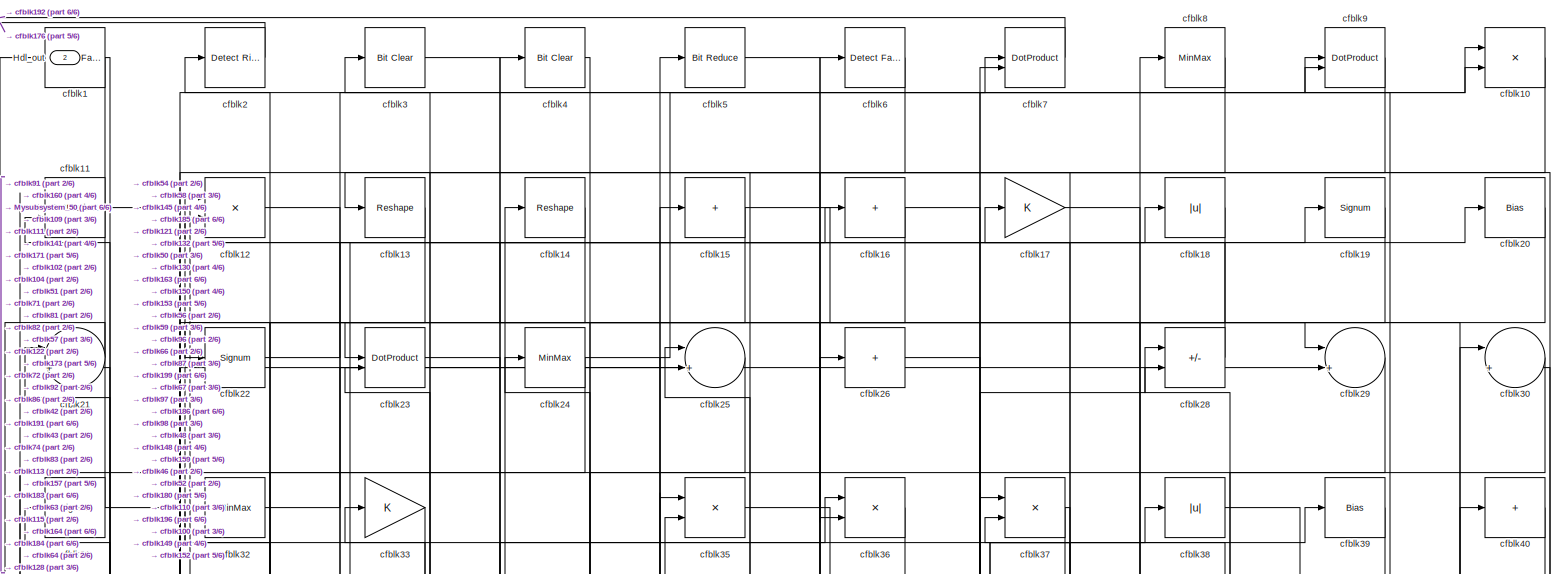
[diagram: root canvas - part 1/6, full width, top band]
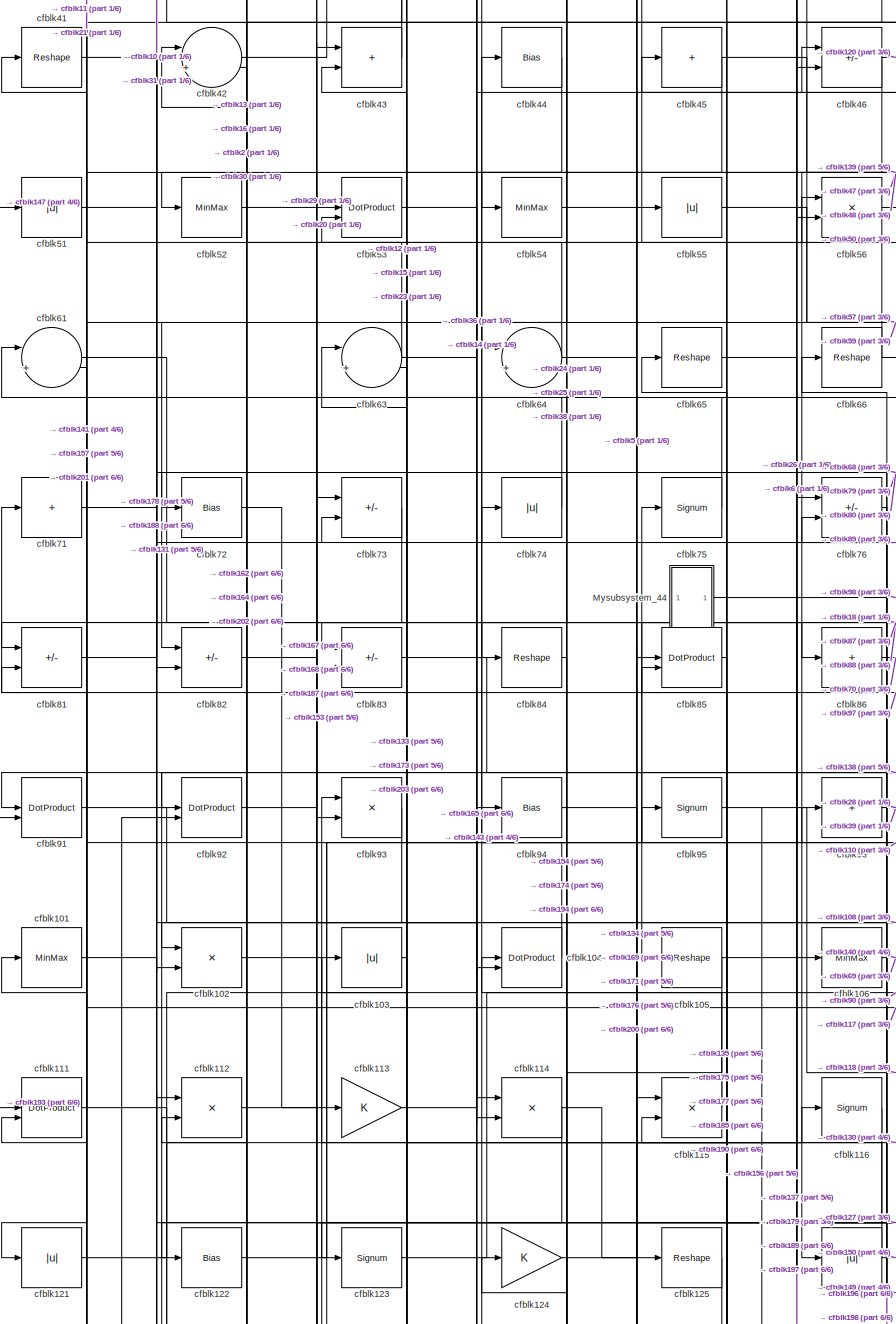
[diagram: root canvas - part 2/6, middle left region]
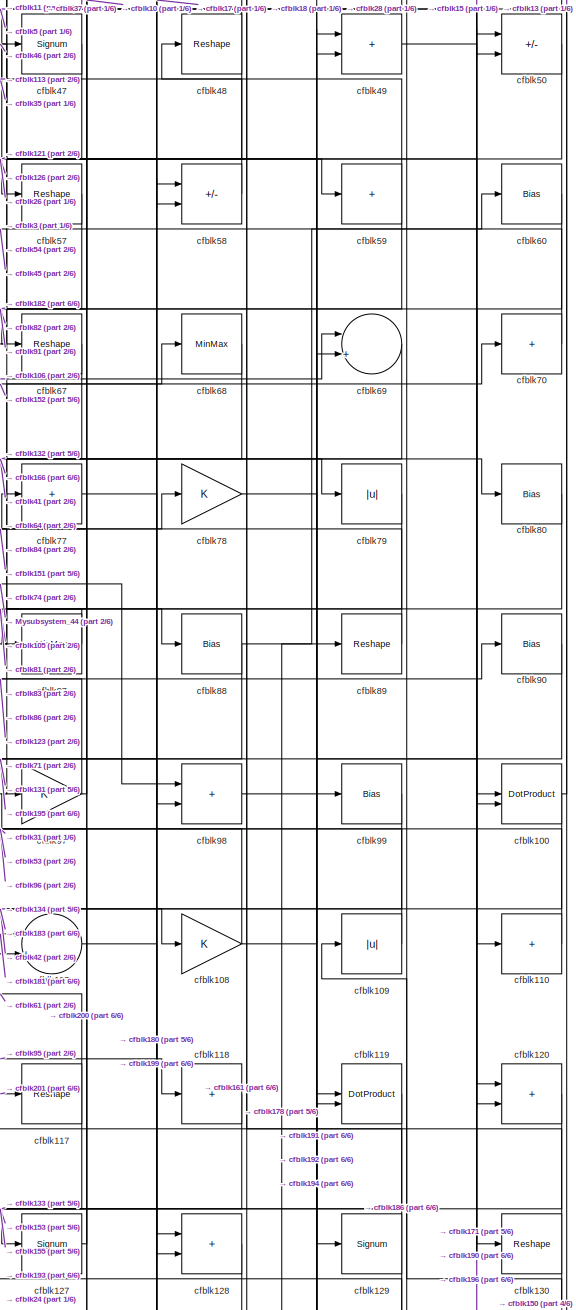
[diagram: root canvas - part 3/6, middle right region]
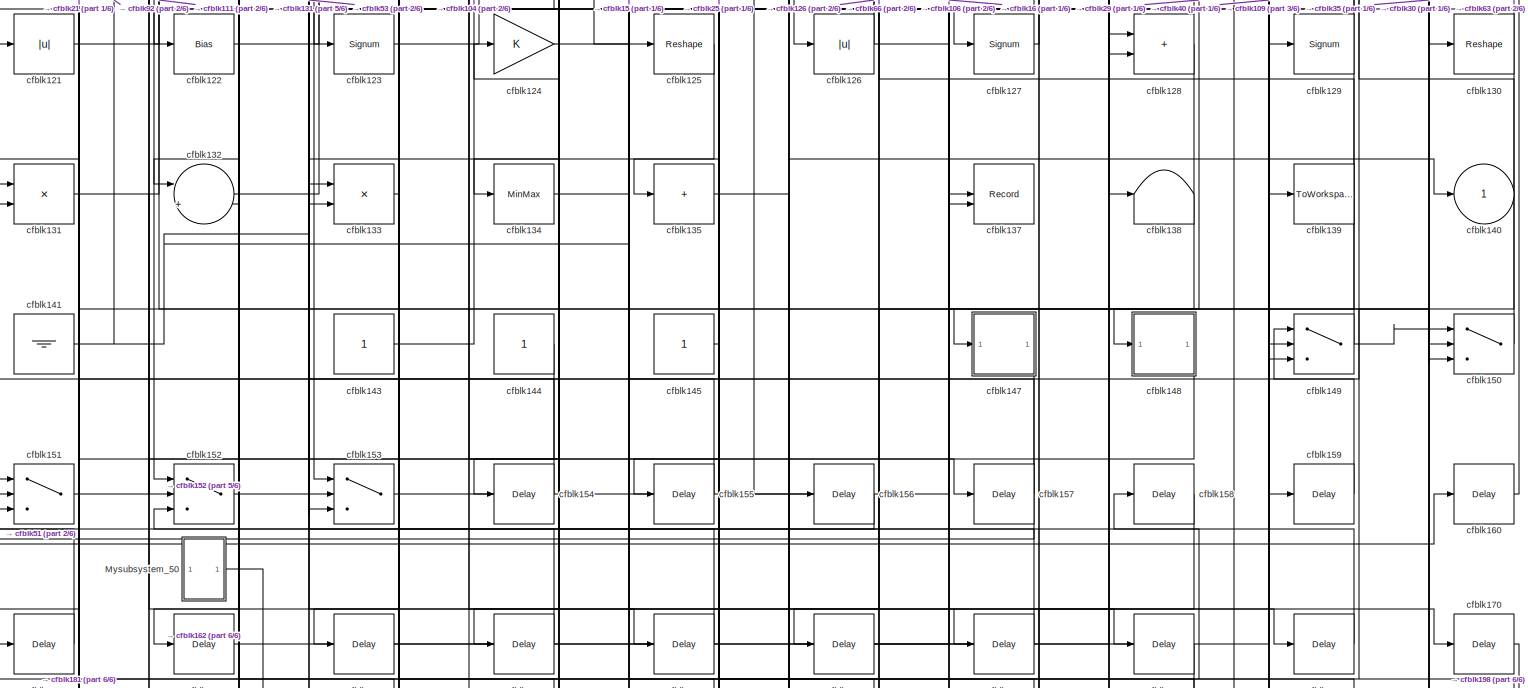
[diagram: root canvas - part 4/6, full width, bottom band]
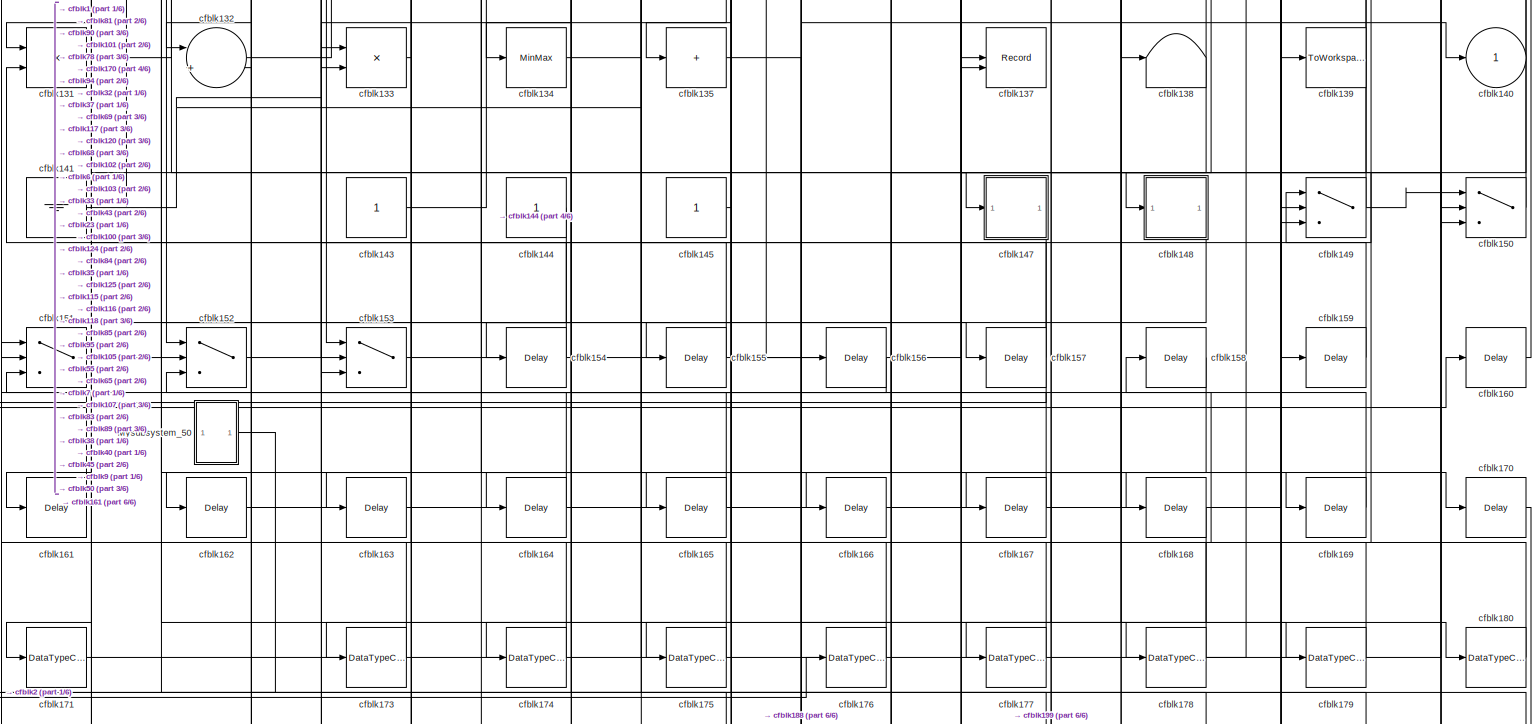
[diagram: root canvas - part 5/6, full width, bottom band]
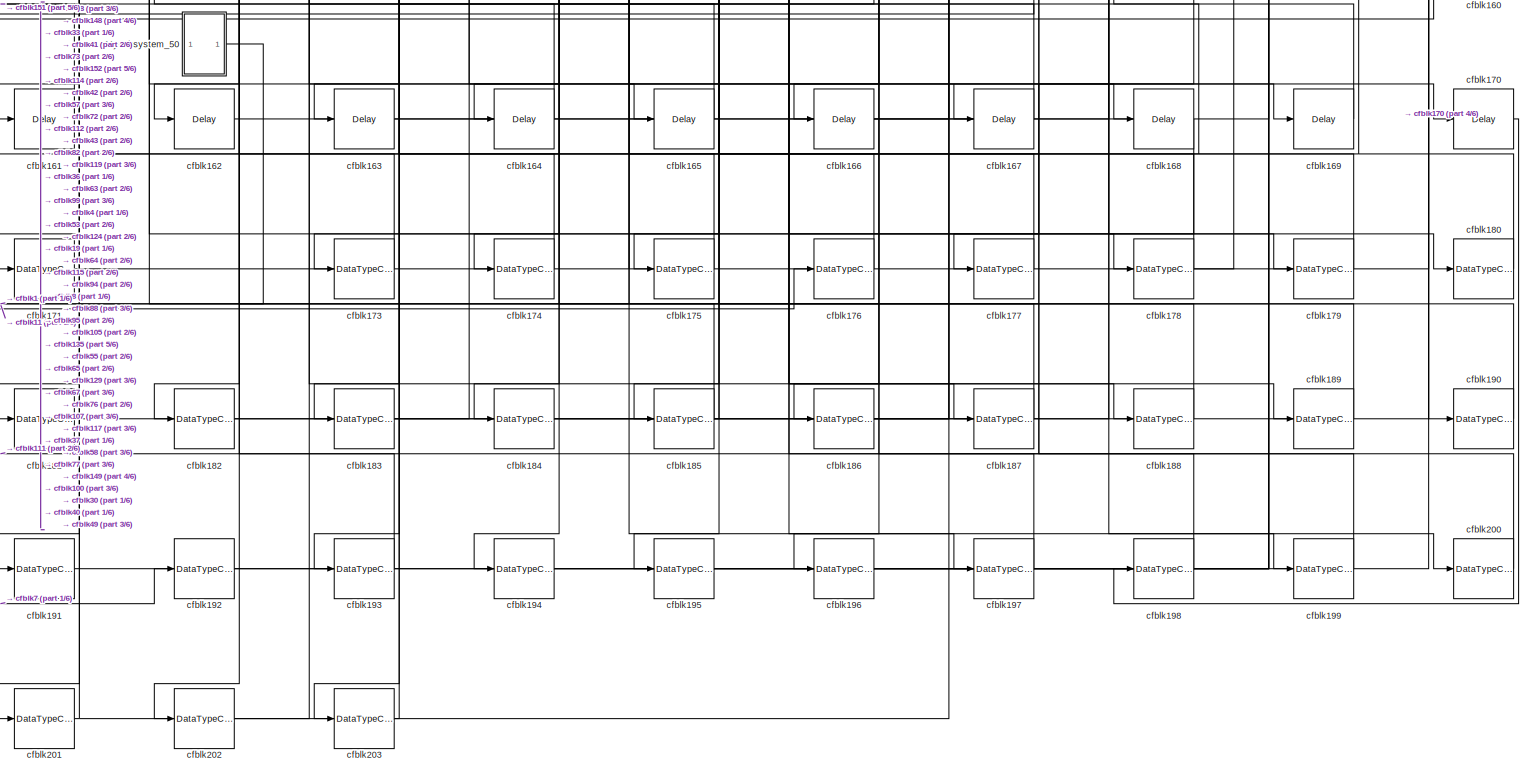
[diagram: root canvas - part 6/6, full width, bottom band]
MODEL slx_8bbd5f42f8d1
KIND model
CONFIG AbsTol = auto
CONFIG EnableMultiTasking = off
CONFIG FixedStep = auto
CONFIG MaxStep = auto
CONFIG MinStep = auto
CONFIG RelTol = 1e-3
CONFIG SampleTimeConstraint = Unconstrained
CONFIG SolverName = VariableStepAuto
CONFIG StartTime = 0.0
CONFIG StopTime = 10.0
BLOCK [Outport] Hdl_out
  OutDataTypeStr = uint8
  Port = 2
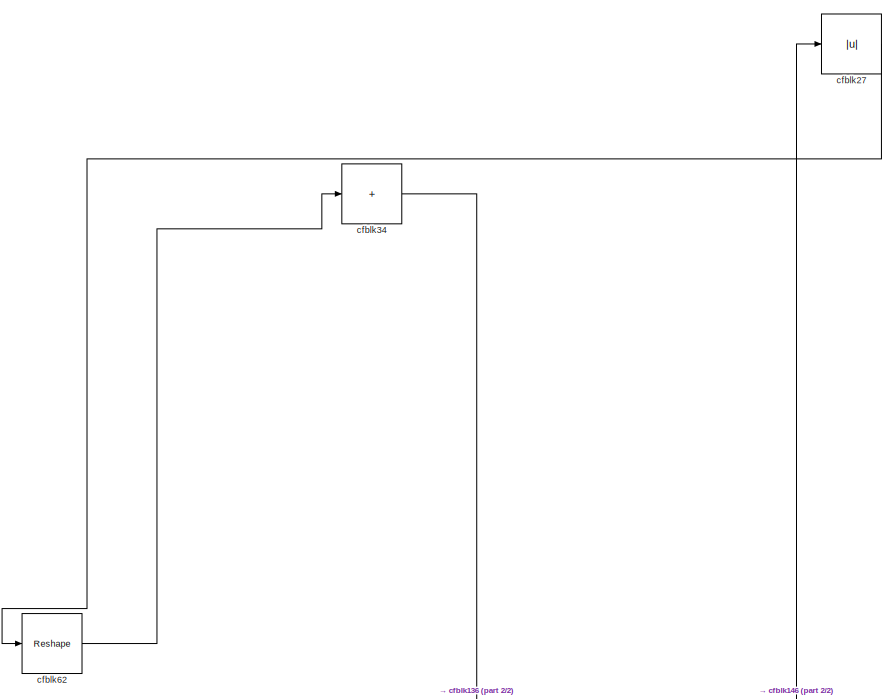
[diagram: Mysubsystem_44 - part 1/2, full width, top band]
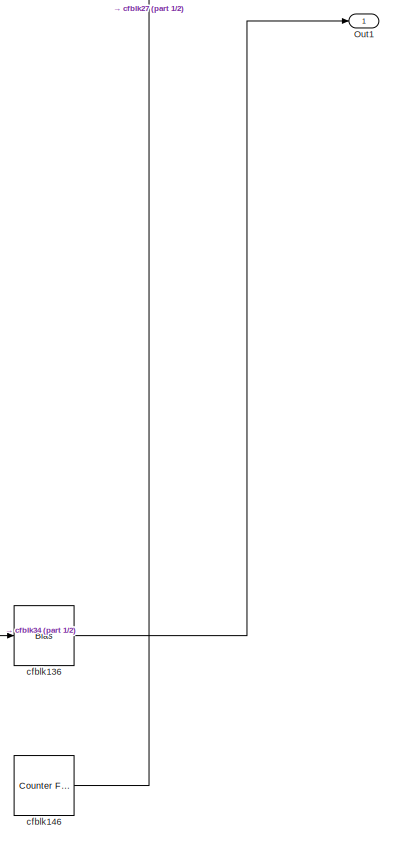
[diagram: Mysubsystem_44 - part 2/2, bottom right region]
BLOCK [SubSystem] Mysubsystem_44
  RTWFcnName = Mysubsystem_44
  RTWFcnNameOpts = User specified
  RTWFileNameOpts = Use function name
  RTWSystemCode = Reusable function
  TreatAsAtomicUnit = on
BLOCK [Outport] Mysubsystem_44/Out1
BLOCK [Bias] Mysubsystem_44/cfblk136
  Bias = 0.0
  SaturateOnIntegerOverflow = off
BLOCK [Reference] Mysubsystem_44/cfblk146  REF=hdlsllib/Sources/Counter
Free-Running
  SourceBlock = hdlsllib/Sources/Counter\nFree-Running
  SourceType = Counter Free-Running
BLOCK [Abs] Mysubsystem_44/cfblk27
  SaturateOnIntegerOverflow = off
BLOCK [Sum] Mysubsystem_44/cfblk34
  IconShape = rectangular
  Inputs = +
BLOCK [Reshape] Mysubsystem_44/cfblk62
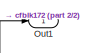
[diagram: Mysubsystem_50 - part 1/2, top left region]
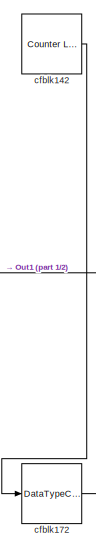
[diagram: Mysubsystem_50 - part 2/2, bottom right region]
BLOCK [SubSystem] Mysubsystem_50
  RTWFcnName = Mysubsystem_50
  RTWFcnNameOpts = User specified
  RTWFileNameOpts = Use function name
  RTWSystemCode = Reusable function
  TreatAsAtomicUnit = on
BLOCK [Outport] Mysubsystem_50/Out1
BLOCK [Reference] Mysubsystem_50/cfblk142  REF=hdlsllib/Sources/Counter
Limited
  SourceBlock = hdlsllib/Sources/Counter\nLimited
  SourceType = Counter Limited
BLOCK [DataTypeConversion] Mysubsystem_50/cfblk172
  OutDataTypeStr = uint8
  RndMeth = Floor
  SaturateOnIntegerOverflow = off
BLOCK [Reference] cfblk1  REF=hdlsllib/Logic and Bit
Operations/Detect Fall
Negative
  SourceBlock = hdlsllib/Logic and Bit\nOperations/Detect Fall\nNegative
  SourceType = Detect Fall Negative
BLOCK [Product] cfblk10
  Inputs = */
  OutDataTypeStr = uint8
  RndMeth = Zero
  SaturateOnIntegerOverflow = on
BLOCK [DotProduct] cfblk100
  OutDataTypeStr = uint8
BLOCK [MinMax] cfblk101
  OutDataTypeStr = uint8
BLOCK [Product] cfblk102
  Inputs = */
  OutDataTypeStr = uint8
  RndMeth = Zero
  SaturateOnIntegerOverflow = on
BLOCK [Abs] cfblk103
  OutDataTypeStr = uint8
  SaturateOnIntegerOverflow = off
BLOCK [DotProduct] cfblk104
  OutDataTypeStr = uint8
BLOCK [Reshape] cfblk105
BLOCK [MinMax] cfblk106
  OutDataTypeStr = uint8
BLOCK [Sum] cfblk107
  Inputs = |++
  OutDataTypeStr = uint8
BLOCK [Gain] cfblk108
  OutDataTypeStr = uint8
BLOCK [Abs] cfblk109
  OutDataTypeStr = uint8
  SaturateOnIntegerOverflow = off
BLOCK [DotProduct] cfblk11
  OutDataTypeStr = uint8
BLOCK [Sum] cfblk110
  IconShape = rectangular
  Inputs = +
  OutDataTypeStr = uint8
BLOCK [DotProduct] cfblk111
  OutDataTypeStr = uint8
BLOCK [Product] cfblk112
  Inputs = */
  OutDataTypeStr = uint8
  RndMeth = Zero
  SaturateOnIntegerOverflow = on
BLOCK [Gain] cfblk113
  OutDataTypeStr = uint8
BLOCK [Product] cfblk114
  Inputs = */
  OutDataTypeStr = uint8
  RndMeth = Zero
  SaturateOnIntegerOverflow = on
BLOCK [Product] cfblk115
  Inputs = */
  OutDataTypeStr = uint8
  RndMeth = Zero
  SaturateOnIntegerOverflow = on
BLOCK [Signum] cfblk116
BLOCK [Reshape] cfblk117
BLOCK [Sum] cfblk118
  IconShape = rectangular
  Inputs = +
  OutDataTypeStr = uint8
BLOCK [DotProduct] cfblk119
  OutDataTypeStr = uint8
BLOCK [Product] cfblk12
  Inputs = */
  OutDataTypeStr = uint8
  RndMeth = Zero
  SaturateOnIntegerOverflow = on
BLOCK [Sum] cfblk120
  IconShape = rectangular
  OutDataTypeStr = uint8
BLOCK [Abs] cfblk121
  OutDataTypeStr = uint8
  SaturateOnIntegerOverflow = off
BLOCK [Bias] cfblk122
  Bias = 0.0
  SaturateOnIntegerOverflow = off
BLOCK [Signum] cfblk123
BLOCK [Gain] cfblk124
  OutDataTypeStr = uint8
BLOCK [Reshape] cfblk125
BLOCK [Abs] cfblk126
  OutDataTypeStr = uint8
  SaturateOnIntegerOverflow = off
BLOCK [Signum] cfblk127
BLOCK [Sum] cfblk128
  IconShape = rectangular
  OutDataTypeStr = uint8
BLOCK [Signum] cfblk129
BLOCK [Reshape] cfblk13
BLOCK [Reshape] cfblk130
BLOCK [Product] cfblk131
  Inputs = */
  OutDataTypeStr = uint8
  RndMeth = Zero
  SaturateOnIntegerOverflow = on
BLOCK [Sum] cfblk132
  Inputs = |++
  OutDataTypeStr = uint8
BLOCK [Product] cfblk133
  Inputs = */
  OutDataTypeStr = uint8
  RndMeth = Zero
  SaturateOnIntegerOverflow = on
BLOCK [MinMax] cfblk134
  OutDataTypeStr = uint8
BLOCK [Sum] cfblk135
  IconShape = rectangular
  Inputs = +
  OutDataTypeStr = uint8
BLOCK [Record] cfblk137
  CompatibilityTag = XY
  FileSettingsInternal = {"entries":[{"content":{"excelSettings":{"content":{},"type":"Streamout.ExcelSettings"}},"type":"Streamout.FileSettingStorage","uuid":""}],"packageUris":["http:\/\/schema.mathworks.com\/mf0\/streamout_blocks\/R2020a"],"version":"1.0"}
  Layout = [1 1]
  SignalsInternal = {"entries":[{"content":{"signals":[{"content":{"blockPath":[],"dimensions":[1],"domain":"","lineColor":"#a2142f","plots":[1],"port":1,"signalID":59019,"signalName":"cfblk55"},"type":"RecordBlkView.Signal","uuid":""},{"content":{"blockPath":[],"dimensions":[1],"domain":"","lineColor":"#139fff","plots":[1],"port":2,"signalID":59022,"signalName":"cfblk65"},"type":"RecordBlkView.Signal","uuid":""}]},"...<+142ch>
  VisualizationBindings = {"xyplotplugin":{"info":[{"series":[{"bindingParametersList":[{"parameter":"X-Axis","signalID":59019,"signalName":"cfblk55"},{"parameter":"Y-Axis","signalID":59022,"signalName":"cfblk65"}],"seriesID":23205}],"subplotID":1}]}}
  st = -1
BLOCK [Terminator] cfblk138
BLOCK [ToWorkspace] cfblk139
  MaxDataPoints = inf
  SampleTime = -1
  SaveFormat = Timeseries
  VariableName = simout
BLOCK [Reshape] cfblk14
BLOCK [Outport] cfblk140
  OutDataTypeStr = uint8
  VectorParamsAs1DForOutWhenUnconnected = off
BLOCK [Ground] cfblk141
BLOCK [Constant] cfblk143
  OutDataTypeStr = uint8
  SampleTime = -1
BLOCK [Constant] cfblk144
  OutDataTypeStr = uint8
  SampleTime = -1
BLOCK [Constant] cfblk145
  OutDataTypeStr = uint8
  SampleTime = -1
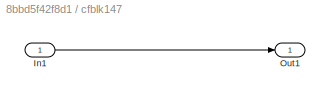
BLOCK [SubSystem] cfblk147
  LibrarySourceBlock = hdlsllib/Ports &\nSubsystems/Subsystem
BLOCK [Inport] cfblk147/In1
BLOCK [Outport] cfblk147/Out1
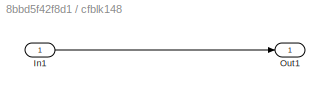
BLOCK [SubSystem] cfblk148
  LibrarySourceBlock = hdlsllib/Ports &\nSubsystems/Subsystem
BLOCK [Inport] cfblk148/In1
BLOCK [Outport] cfblk148/Out1
BLOCK [Switch] cfblk149
  InputSameDT = off
  OutDataTypeStr = uint8
  SaturateOnIntegerOverflow = off
BLOCK [Sum] cfblk15
  IconShape = rectangular
  Inputs = +
  OutDataTypeStr = uint8
BLOCK [Switch] cfblk150
  InputSameDT = off
  OutDataTypeStr = uint8
  SaturateOnIntegerOverflow = off
BLOCK [Switch] cfblk151
  InputSameDT = off
  OutDataTypeStr = uint8
  SaturateOnIntegerOverflow = off
BLOCK [Switch] cfblk152
  InputSameDT = off
  OutDataTypeStr = uint8
  SaturateOnIntegerOverflow = off
BLOCK [Switch] cfblk153
  InputSameDT = off
  OutDataTypeStr = uint8
  SaturateOnIntegerOverflow = off
BLOCK [Delay] cfblk154
  InputPortMap = u0
  SampleTime = 1
BLOCK [Delay] cfblk155
  InputPortMap = u0
  SampleTime = 1
BLOCK [Delay] cfblk156
  InputPortMap = u0
  SampleTime = 1
BLOCK [Delay] cfblk157
  InputPortMap = u0
  SampleTime = 1
BLOCK [Delay] cfblk158
  InputPortMap = u0
  SampleTime = 1
BLOCK [Delay] cfblk159
  InputPortMap = u0
  SampleTime = 1
BLOCK [Sum] cfblk16
  IconShape = rectangular
  Inputs = +
  OutDataTypeStr = uint8
BLOCK [Delay] cfblk160
  InputPortMap = u0
  SampleTime = 1
BLOCK [Delay] cfblk161
  InputPortMap = u0
  SampleTime = 1
BLOCK [Delay] cfblk162
  InputPortMap = u0
  SampleTime = 1
BLOCK [Delay] cfblk163
  InputPortMap = u0
  SampleTime = 1
BLOCK [Delay] cfblk164
  InputPortMap = u0
  SampleTime = 1
BLOCK [Delay] cfblk165
  InputPortMap = u0
  SampleTime = 1
BLOCK [Delay] cfblk166
  InputPortMap = u0
  SampleTime = 1
BLOCK [Delay] cfblk167
  InputPortMap = u0
  SampleTime = 1
BLOCK [Delay] cfblk168
  InputPortMap = u0
  SampleTime = 1
BLOCK [Delay] cfblk169
  InputPortMap = u0
  SampleTime = 1
BLOCK [Gain] cfblk17
  OutDataTypeStr = uint8
BLOCK [Delay] cfblk170
  InputPortMap = u0
  SampleTime = 1
BLOCK [DataTypeConversion] cfblk171
  OutDataTypeStr = uint8
  RndMeth = Floor
  SaturateOnIntegerOverflow = off
BLOCK [DataTypeConversion] cfblk173
  OutDataTypeStr = uint8
  RndMeth = Floor
  SaturateOnIntegerOverflow = off
BLOCK [DataTypeConversion] cfblk174
  OutDataTypeStr = uint8
  RndMeth = Floor
  SaturateOnIntegerOverflow = off
BLOCK [DataTypeConversion] cfblk175
  OutDataTypeStr = uint8
  RndMeth = Floor
  SaturateOnIntegerOverflow = off
BLOCK [DataTypeConversion] cfblk176
  OutDataTypeStr = uint8
  RndMeth = Floor
  SaturateOnIntegerOverflow = off
BLOCK [DataTypeConversion] cfblk177
  OutDataTypeStr = uint8
  RndMeth = Floor
  SaturateOnIntegerOverflow = off
BLOCK [DataTypeConversion] cfblk178
  OutDataTypeStr = uint8
  RndMeth = Floor
  SaturateOnIntegerOverflow = off
BLOCK [DataTypeConversion] cfblk179
  OutDataTypeStr = uint8
  RndMeth = Floor
  SaturateOnIntegerOverflow = off
BLOCK [Abs] cfblk18
  OutDataTypeStr = uint8
  SaturateOnIntegerOverflow = off
BLOCK [DataTypeConversion] cfblk180
  OutDataTypeStr = uint8
  RndMeth = Floor
  SaturateOnIntegerOverflow = off
BLOCK [DataTypeConversion] cfblk181
  OutDataTypeStr = uint8
  RndMeth = Floor
  SaturateOnIntegerOverflow = off
BLOCK [DataTypeConversion] cfblk182
  OutDataTypeStr = uint8
  RndMeth = Floor
  SaturateOnIntegerOverflow = off
BLOCK [DataTypeConversion] cfblk183
  OutDataTypeStr = uint8
  RndMeth = Floor
  SaturateOnIntegerOverflow = off
BLOCK [DataTypeConversion] cfblk184
  OutDataTypeStr = uint8
  RndMeth = Floor
  SaturateOnIntegerOverflow = off
BLOCK [DataTypeConversion] cfblk185
  OutDataTypeStr = uint8
  RndMeth = Floor
  SaturateOnIntegerOverflow = off
BLOCK [DataTypeConversion] cfblk186
  OutDataTypeStr = uint8
  RndMeth = Floor
  SaturateOnIntegerOverflow = off
BLOCK [DataTypeConversion] cfblk187
  OutDataTypeStr = uint8
  RndMeth = Floor
  SaturateOnIntegerOverflow = off
BLOCK [DataTypeConversion] cfblk188
  OutDataTypeStr = uint8
  RndMeth = Floor
  SaturateOnIntegerOverflow = off
BLOCK [DataTypeConversion] cfblk189
  OutDataTypeStr = uint8
  RndMeth = Floor
  SaturateOnIntegerOverflow = off
BLOCK [Signum] cfblk19
BLOCK [DataTypeConversion] cfblk190
  OutDataTypeStr = uint8
  RndMeth = Floor
  SaturateOnIntegerOverflow = off
BLOCK [DataTypeConversion] cfblk191
  OutDataTypeStr = uint8
  RndMeth = Floor
  SaturateOnIntegerOverflow = off
BLOCK [DataTypeConversion] cfblk192
  OutDataTypeStr = uint8
  RndMeth = Floor
  SaturateOnIntegerOverflow = off
BLOCK [DataTypeConversion] cfblk193
  OutDataTypeStr = uint8
  RndMeth = Floor
  SaturateOnIntegerOverflow = off
BLOCK [DataTypeConversion] cfblk194
  OutDataTypeStr = uint8
  RndMeth = Floor
  SaturateOnIntegerOverflow = off
BLOCK [DataTypeConversion] cfblk195
  OutDataTypeStr = uint8
  RndMeth = Floor
  SaturateOnIntegerOverflow = off
BLOCK [DataTypeConversion] cfblk196
  OutDataTypeStr = uint8
  RndMeth = Floor
  SaturateOnIntegerOverflow = off
BLOCK [DataTypeConversion] cfblk197
  OutDataTypeStr = uint8
  RndMeth = Floor
  SaturateOnIntegerOverflow = off
BLOCK [DataTypeConversion] cfblk198
  OutDataTypeStr = uint8
  RndMeth = Floor
  SaturateOnIntegerOverflow = off
BLOCK [DataTypeConversion] cfblk199
  OutDataTypeStr = uint8
  RndMeth = Floor
  SaturateOnIntegerOverflow = off
BLOCK [Reference] cfblk2  REF=hdlsllib/Logic and Bit
Operations/Detect Rise
Positive
  SourceBlock = hdlsllib/Logic and Bit\nOperations/Detect Rise\nPositive
  SourceType = Detect Rise Positive
BLOCK [Bias] cfblk20
  Bias = 0.0
  SaturateOnIntegerOverflow = off
BLOCK [DataTypeConversion] cfblk200
  OutDataTypeStr = uint8
  RndMeth = Floor
  SaturateOnIntegerOverflow = off
BLOCK [DataTypeConversion] cfblk201
  OutDataTypeStr = uint8
  RndMeth = Floor
  SaturateOnIntegerOverflow = off
BLOCK [DataTypeConversion] cfblk202
  OutDataTypeStr = uint8
  RndMeth = Floor
  SaturateOnIntegerOverflow = off
BLOCK [DataTypeConversion] cfblk203
  OutDataTypeStr = uint8
  RndMeth = Floor
  SaturateOnIntegerOverflow = off
BLOCK [Sum] cfblk21
  Inputs = |++
  OutDataTypeStr = uint8
BLOCK [Signum] cfblk22
BLOCK [DotProduct] cfblk23
  OutDataTypeStr = uint8
BLOCK [MinMax] cfblk24
  OutDataTypeStr = uint8
BLOCK [Sum] cfblk25
  Inputs = |++
  OutDataTypeStr = uint8
BLOCK [Sum] cfblk26
  IconShape = rectangular
  Inputs = +
  OutDataTypeStr = uint8
BLOCK [Sum] cfblk28
  IconShape = rectangular
  Inputs = +-
  OutDataTypeStr = uint8
BLOCK [Sum] cfblk29
  Inputs = |++
  OutDataTypeStr = uint8
BLOCK [Reference] cfblk3  REF=simulink/Logic and Bit
Operations/Bit Clear
  LibrarySourceBlock = hdlsllib/Logic and Bit\nOperations/Bit Clear
  SourceBlock = simulink/Logic and Bit\nOperations/Bit Clear
  SourceType = Bit Clear
BLOCK [Sum] cfblk30
  Inputs = |++
  OutDataTypeStr = uint8
BLOCK [Signum] cfblk31
BLOCK [MinMax] cfblk32
  OutDataTypeStr = uint8
BLOCK [Gain] cfblk33
  OutDataTypeStr = uint8
BLOCK [Product] cfblk35
  Inputs = */
  OutDataTypeStr = uint8
  RndMeth = Zero
  SaturateOnIntegerOverflow = on
BLOCK [Product] cfblk36
  Inputs = */
  OutDataTypeStr = uint8
  RndMeth = Zero
  SaturateOnIntegerOverflow = on
BLOCK [Product] cfblk37
  Inputs = */
  OutDataTypeStr = uint8
  RndMeth = Zero
  SaturateOnIntegerOverflow = on
BLOCK [Abs] cfblk38
  OutDataTypeStr = uint8
  SaturateOnIntegerOverflow = off
BLOCK [Bias] cfblk39
  Bias = 0.0
  SaturateOnIntegerOverflow = off
BLOCK [Reference] cfblk4  REF=simulink/Logic and Bit
Operations/Bit Clear
  LibrarySourceBlock = hdlsllib/Logic and Bit\nOperations/Bit Clear
  SourceBlock = simulink/Logic and Bit\nOperations/Bit Clear
  SourceType = Bit Clear
BLOCK [Sum] cfblk40
  IconShape = rectangular
  Inputs = +
  OutDataTypeStr = uint8
BLOCK [Reshape] cfblk41
BLOCK [Sum] cfblk42
  Inputs = |++
  OutDataTypeStr = uint8
BLOCK [Sum] cfblk43
  IconShape = rectangular
  OutDataTypeStr = uint8
BLOCK [Bias] cfblk44
  Bias = 0.0
  SaturateOnIntegerOverflow = off
BLOCK [Sum] cfblk45
  IconShape = rectangular
  Inputs = +
  OutDataTypeStr = uint8
BLOCK [Sum] cfblk46
  IconShape = rectangular
  Inputs = +-
  OutDataTypeStr = uint8
BLOCK [Signum] cfblk47
BLOCK [Reshape] cfblk48
BLOCK [Sum] cfblk49
  IconShape = rectangular
  OutDataTypeStr = uint8
BLOCK [Reference] cfblk5  REF=hdlsllib/Logic and Bit
Operations/Bit Reduce
  SourceBlock = hdlsllib/Logic and Bit\nOperations/Bit Reduce
  SourceType = Bit Reduce
BLOCK [Sum] cfblk50
  IconShape = rectangular
  Inputs = +-
  OutDataTypeStr = uint8
BLOCK [Abs] cfblk51
  OutDataTypeStr = uint8
  SaturateOnIntegerOverflow = off
BLOCK [MinMax] cfblk52
  OutDataTypeStr = uint8
BLOCK [DotProduct] cfblk53
  OutDataTypeStr = uint8
BLOCK [MinMax] cfblk54
  OutDataTypeStr = uint8
BLOCK [Abs] cfblk55
  OutDataTypeStr = uint8
  SaturateOnIntegerOverflow = off
BLOCK [Product] cfblk56
  Inputs = */
  OutDataTypeStr = uint8
  RndMeth = Zero
  SaturateOnIntegerOverflow = on
BLOCK [Reshape] cfblk57
BLOCK [Sum] cfblk58
  IconShape = rectangular
  Inputs = +-
  OutDataTypeStr = uint8
BLOCK [Sum] cfblk59
  IconShape = rectangular
  Inputs = +
  OutDataTypeStr = uint8
BLOCK [Reference] cfblk6  REF=hdlsllib/Logic and Bit
Operations/Detect Fall
Negative
  SourceBlock = hdlsllib/Logic and Bit\nOperations/Detect Fall\nNegative
  SourceType = Detect Fall Negative
BLOCK [Bias] cfblk60
  Bias = 0.0
  SaturateOnIntegerOverflow = off
BLOCK [Sum] cfblk61
  Inputs = |++
  OutDataTypeStr = uint8
BLOCK [Sum] cfblk63
  Inputs = |++
  OutDataTypeStr = uint8
BLOCK [Sum] cfblk64
  Inputs = |++
  OutDataTypeStr = uint8
BLOCK [Reshape] cfblk65
BLOCK [Reshape] cfblk66
BLOCK [Reshape] cfblk67
BLOCK [MinMax] cfblk68
  OutDataTypeStr = uint8
BLOCK [Sum] cfblk69
  Inputs = |++
  OutDataTypeStr = uint8
BLOCK [DotProduct] cfblk7
  OutDataTypeStr = uint8
BLOCK [Sum] cfblk70
  IconShape = rectangular
  Inputs = +
  OutDataTypeStr = uint8
BLOCK [Sum] cfblk71
  IconShape = rectangular
  Inputs = +
  OutDataTypeStr = uint8
BLOCK [Bias] cfblk72
  Bias = 0.0
  SaturateOnIntegerOverflow = off
BLOCK [Sum] cfblk73
  IconShape = rectangular
  Inputs = +-
  OutDataTypeStr = uint8
BLOCK [Abs] cfblk74
  OutDataTypeStr = uint8
  SaturateOnIntegerOverflow = off
BLOCK [Signum] cfblk75
BLOCK [Sum] cfblk76
  IconShape = rectangular
  Inputs = +-
  OutDataTypeStr = uint8
BLOCK [Sum] cfblk77
  IconShape = rectangular
  Inputs = +
  OutDataTypeStr = uint8
BLOCK [Gain] cfblk78
  OutDataTypeStr = uint8
BLOCK [Abs] cfblk79
  OutDataTypeStr = uint8
  SaturateOnIntegerOverflow = off
BLOCK [MinMax] cfblk8
  OutDataTypeStr = uint8
BLOCK [Bias] cfblk80
  Bias = 0.0
  SaturateOnIntegerOverflow = off
BLOCK [Sum] cfblk81
  IconShape = rectangular
  Inputs = +-
  OutDataTypeStr = uint8
BLOCK [Sum] cfblk82
  IconShape = rectangular
  Inputs = +-
  OutDataTypeStr = uint8
BLOCK [Sum] cfblk83
  IconShape = rectangular
  Inputs = +-
  OutDataTypeStr = uint8
BLOCK [Reshape] cfblk84
BLOCK [DotProduct] cfblk85
  OutDataTypeStr = uint8
BLOCK [Sum] cfblk86
  IconShape = rectangular
  Inputs = +
  OutDataTypeStr = uint8
BLOCK [MinMax] cfblk87
  OutDataTypeStr = uint8
BLOCK [Bias] cfblk88
  Bias = 0.0
  SaturateOnIntegerOverflow = off
BLOCK [Reshape] cfblk89
BLOCK [DotProduct] cfblk9
  OutDataTypeStr = uint8
BLOCK [Bias] cfblk90
  Bias = 0.0
  SaturateOnIntegerOverflow = off
BLOCK [DotProduct] cfblk91
  OutDataTypeStr = uint8
BLOCK [DotProduct] cfblk92
  OutDataTypeStr = uint8
BLOCK [Product] cfblk93
  Inputs = */
  OutDataTypeStr = uint8
  RndMeth = Zero
  SaturateOnIntegerOverflow = on
BLOCK [Bias] cfblk94
  Bias = 0.0
  SaturateOnIntegerOverflow = off
BLOCK [Signum] cfblk95
BLOCK [Sum] cfblk96
  IconShape = rectangular
  Inputs = +
  OutDataTypeStr = uint8
BLOCK [Gain] cfblk97
  OutDataTypeStr = uint8
BLOCK [Sum] cfblk98
  IconShape = rectangular
  OutDataTypeStr = uint8
BLOCK [Bias] cfblk99
  Bias = 0.0
  SaturateOnIntegerOverflow = off
LINE Mysubsystem_44/cfblk136:1 -> Mysubsystem_44/Out1:1
LINE Mysubsystem_44/cfblk146:1 -> Mysubsystem_44/cfblk27:1
LINE Mysubsystem_44/cfblk27:1 -> Mysubsystem_44/cfblk62:1
LINE Mysubsystem_44/cfblk34:1 -> Mysubsystem_44/cfblk136:1
LINE Mysubsystem_44/cfblk62:1 -> Mysubsystem_44/cfblk34:1
LINE Mysubsystem_44:1 -> cfblk98:1
LINE Mysubsystem_50/cfblk142:1 -> Mysubsystem_50/cfblk172:1
LINE Mysubsystem_50/cfblk172:1 -> Mysubsystem_50/Out1:1
LINE Mysubsystem_50:1 -> cfblk1:1
NET cfblk100:1 -> cfblk134:1, cfblk13:1
LINE cfblk101:1 -> cfblk178:1
LINE cfblk102:1 -> cfblk153:1
LINE cfblk103:1 -> cfblk173:1
LINE cfblk104:1 -> cfblk44:1
NET cfblk105:1 -> cfblk179:1, cfblk194:1
NET cfblk106:1 -> cfblk140:1, cfblk69:1
LINE cfblk107:1 -> cfblk180:1
NET cfblk108:1 -> cfblk53:2, cfblk69:2
LINE cfblk109:1 -> cfblk31:1
NET cfblk10:1 -> cfblk102:2, cfblk67:1
LINE cfblk110:1 -> cfblk96:1
NET cfblk111:1 -> cfblk11:2, cfblk147:1
LINE cfblk112:1 -> cfblk187:1
NET cfblk113:1 -> cfblk16:1, cfblk47:1
NET cfblk114:1 -> cfblk125:1, cfblk162:1
LINE cfblk115:1 -> cfblk14:1
LINE cfblk116:1 -> cfblk135:1
NET cfblk117:1 -> cfblk133:2, cfblk61:2
LINE cfblk118:1 -> cfblk155:1
LINE cfblk119:1 -> cfblk193:1
LINE cfblk11:1 -> cfblk57:1
LINE cfblk120:1 -> cfblk153:2
LINE cfblk121:1 -> cfblk26:1
LINE cfblk122:1 -> cfblk75:1
LINE cfblk123:1 -> cfblk90:1
NET cfblk124:1 -> cfblk169:1, cfblk174:1
LINE cfblk125:1 -> cfblk153:3
NET cfblk126:1 -> cfblk150:2, cfblk93:1
LINE cfblk127:1 -> cfblk97:1
LINE cfblk128:1 -> cfblk161:1
NET cfblk129:1 -> cfblk186:1, cfblk48:1
LINE cfblk12:1 -> cfblk86:1
NET cfblk130:1 -> cfblk149:1, cfblk63:2
NET cfblk131:1 -> cfblk170:1, cfblk94:1
LINE cfblk132:1 -> cfblk6:1
LINE cfblk133:1 -> cfblk43:2
LINE cfblk134:1 -> cfblk116:1
LINE cfblk135:1 -> cfblk188:1
LINE cfblk13:1 -> cfblk122:1
NET cfblk141:1 -> cfblk15:1, cfblk21:2, cfblk53:1, cfblk92:2
LINE cfblk143:1 -> cfblk104:1
LINE cfblk144:1 -> cfblk152:2
LINE cfblk145:1 -> cfblk25:1
LINE cfblk147/In1:1 -> cfblk147/Out1:1
LINE cfblk147:1 -> cfblk51:1
LINE cfblk148/In1:1 -> cfblk148/Out1:1
LINE cfblk148:1 -> cfblk181:1
NET cfblk149:1 -> cfblk150:1, cfblk66:1
LINE cfblk14:1 -> cfblk82:2
LINE cfblk150:1 -> cfblk109:1
LINE cfblk151:1 -> cfblk78:1
LINE cfblk152:1 -> cfblk68:1
LINE cfblk153:1 -> cfblk7:2
LINE cfblk154:1 -> cfblk131:2
LINE cfblk155:1 -> cfblk133:1
LINE cfblk156:1 -> cfblk151:3
LINE cfblk157:1 -> cfblk81:2
LINE cfblk158:1 -> cfblk177:1
LINE cfblk159:1 -> cfblk35:1
NET cfblk15:1 -> cfblk110:1, cfblk83:1
LINE cfblk160:1 -> cfblk30:2
LINE cfblk161:1 -> cfblk151:2
LINE cfblk162:1 -> cfblk149:3
LINE cfblk163:1 -> cfblk37:1
LINE cfblk164:1 -> cfblk42:1
LINE cfblk165:1 -> cfblk63:1
LINE cfblk166:1 -> cfblk58:1
LINE cfblk167:1 -> cfblk43:1
LINE cfblk168:1 -> cfblk203:1
LINE cfblk169:1 -> cfblk64:2
NET cfblk16:1 -> cfblk150:3, cfblk36:2, cfblk92:1
LINE cfblk170:1 -> cfblk198:1
NET cfblk171:1 -> cfblk50:1, cfblk55:1
LINE cfblk173:1 -> cfblk32:1
LINE cfblk174:1 -> cfblk103:1
LINE cfblk175:1 -> cfblk151:1
LINE cfblk176:1 -> cfblk85:1
LINE cfblk177:1 -> cfblk85:2
NET cfblk178:1 -> cfblk115:2, cfblk89:1
LINE cfblk179:1 -> cfblk101:1
LINE cfblk17:1 -> cfblk128:1
NET cfblk180:1 -> cfblk158:1, cfblk33:1, cfblk9:2
LINE cfblk181:1 -> cfblk107:1
LINE cfblk182:1 -> cfblk107:2
LINE cfblk183:1 -> cfblk4:1
LINE cfblk184:1 -> cfblk40:1
NET cfblk185:1 -> cfblk11:1, cfblk65:1
LINE cfblk186:1 -> cfblk8:1
NET cfblk187:1 -> cfblk115:1, cfblk124:1
LINE cfblk188:1 -> cfblk112:1
LINE cfblk189:1 -> cfblk112:2
LINE cfblk18:1 -> cfblk98:2
LINE cfblk190:1 -> cfblk95:1
LINE cfblk191:1 -> cfblk49:1
LINE cfblk192:1 -> cfblk49:2
LINE cfblk193:1 -> cfblk111:1
LINE cfblk194:1 -> cfblk119:1
LINE cfblk195:1 -> cfblk119:2
NET cfblk196:1 -> cfblk100:1, cfblk30:1
LINE cfblk197:1 -> cfblk76:1
LINE cfblk198:1 -> cfblk76:2
NET cfblk199:1 -> cfblk152:3, cfblk37:2
LINE cfblk19:1 -> cfblk164:1
LINE cfblk1:1 -> cfblk171:1
LINE cfblk200:1 -> cfblk77:1
NET cfblk201:1 -> cfblk111:2, cfblk117:1, cfblk41:1
LINE cfblk202:1 -> cfblk73:1
LINE cfblk203:1 -> cfblk73:2
LINE cfblk20:1 -> cfblk22:1
LINE cfblk21:1 -> cfblk160:1
LINE cfblk22:1 -> cfblk19:1
LINE cfblk23:1 -> cfblk157:1
NET cfblk24:1 -> cfblk128:2, cfblk7:1, cfblk91:2
LINE cfblk25:1 -> cfblk64:1
LINE cfblk26:1 -> cfblk59:1
LINE cfblk28:1 -> cfblk12:2
LINE cfblk29:1 -> cfblk148:1
LINE cfblk2:1 -> cfblk176:1
LINE cfblk30:1 -> cfblk72:1
NET cfblk31:1 -> Hdl_out:1, cfblk104:2
LINE cfblk32:1 -> cfblk9:1
LINE cfblk33:1 -> cfblk191:1
LINE cfblk35:1 -> cfblk130:1
LINE cfblk36:1 -> cfblk163:1
NET cfblk37:1 -> cfblk132:2, cfblk87:1
LINE cfblk38:1 -> cfblk159:1
NET cfblk39:1 -> cfblk46:2, cfblk52:1
LINE cfblk3:1 -> cfblk29:1
NET cfblk40:1 -> cfblk149:2, cfblk152:1
NET cfblk41:1 -> cfblk127:1, cfblk80:1
NET cfblk42:1 -> cfblk108:1, cfblk20:1
LINE cfblk43:1 -> cfblk12:1
LINE cfblk44:1 -> cfblk93:2
NET cfblk45:1 -> cfblk123:1, cfblk139:1
NET cfblk46:1 -> cfblk114:2, cfblk120:1
LINE cfblk47:1 -> cfblk121:1
NET cfblk48:1 -> cfblk3:1, cfblk54:1
LINE cfblk49:1 -> cfblk190:1
LINE cfblk4:1 -> cfblk184:1
LINE cfblk50:1 -> cfblk126:1
LINE cfblk51:1 -> cfblk10:2
LINE cfblk52:1 -> cfblk29:2
LINE cfblk53:1 -> cfblk165:1
LINE cfblk54:1 -> cfblk5:1
NET cfblk55:1 -> cfblk137:1, cfblk197:1
LINE cfblk56:1 -> cfblk10:1
NET cfblk57:1 -> cfblk182:1, cfblk82:1
LINE cfblk58:1 -> cfblk35:2
NET cfblk59:1 -> cfblk28:2, cfblk91:1
NET cfblk5:1 -> cfblk50:2, cfblk58:2
LINE cfblk60:1 -> cfblk120:2
LINE cfblk61:1 -> cfblk106:1
NET cfblk63:1 -> cfblk36:1, cfblk42:2
NET cfblk64:1 -> cfblk2:1, cfblk46:1, cfblk79:1
NET cfblk65:1 -> cfblk137:2, cfblk189:1
NET cfblk66:1 -> cfblk21:1, cfblk24:1, cfblk38:1
LINE cfblk67:1 -> cfblk166:1
LINE cfblk68:1 -> cfblk84:1
LINE cfblk69:1 -> cfblk132:1
LINE cfblk6:1 -> cfblk56:2
LINE cfblk70:1 -> cfblk45:1
NET cfblk71:1 -> cfblk18:1, cfblk88:1
NET cfblk72:1 -> cfblk113:1, cfblk202:1
LINE cfblk73:1 -> cfblk201:1
LINE cfblk74:1 -> cfblk23:2
LINE cfblk75:1 -> cfblk61:1
LINE cfblk76:1 -> cfblk196:1
LINE cfblk77:1 -> cfblk199:1
NET cfblk78:1 -> cfblk100:2, cfblk129:1
LINE cfblk79:1 -> cfblk83:2
LINE cfblk7:1 -> cfblk192:1
LINE cfblk80:1 -> cfblk105:1
LINE cfblk81:1 -> cfblk25:2
NET cfblk82:1 -> cfblk167:1, cfblk168:1
LINE cfblk83:1 -> cfblk138:1
LINE cfblk84:1 -> cfblk154:1
LINE cfblk85:1 -> cfblk175:1
LINE cfblk86:1 -> cfblk70:1
LINE cfblk87:1 -> cfblk81:1
NET cfblk88:1 -> cfblk195:1, cfblk60:1
LINE cfblk89:1 -> cfblk74:1
LINE cfblk8:1 -> cfblk185:1
LINE cfblk90:1 -> cfblk131:1
LINE cfblk91:1 -> cfblk114:1
LINE cfblk92:1 -> cfblk56:1
LINE cfblk93:1 -> cfblk102:1
LINE cfblk94:1 -> cfblk200:1
NET cfblk95:1 -> cfblk118:1, cfblk156:1
NET cfblk96:1 -> cfblk28:1, cfblk39:1
NET cfblk97:1 -> cfblk17:1, cfblk71:1
LINE cfblk98:1 -> cfblk99:1
LINE cfblk99:1 -> cfblk183:1
LINE cfblk9:1 -> cfblk23:1
note: NET lines group one-source signal fan-out (src -> all destinations, sorted); 1:1 wires keep LINE
